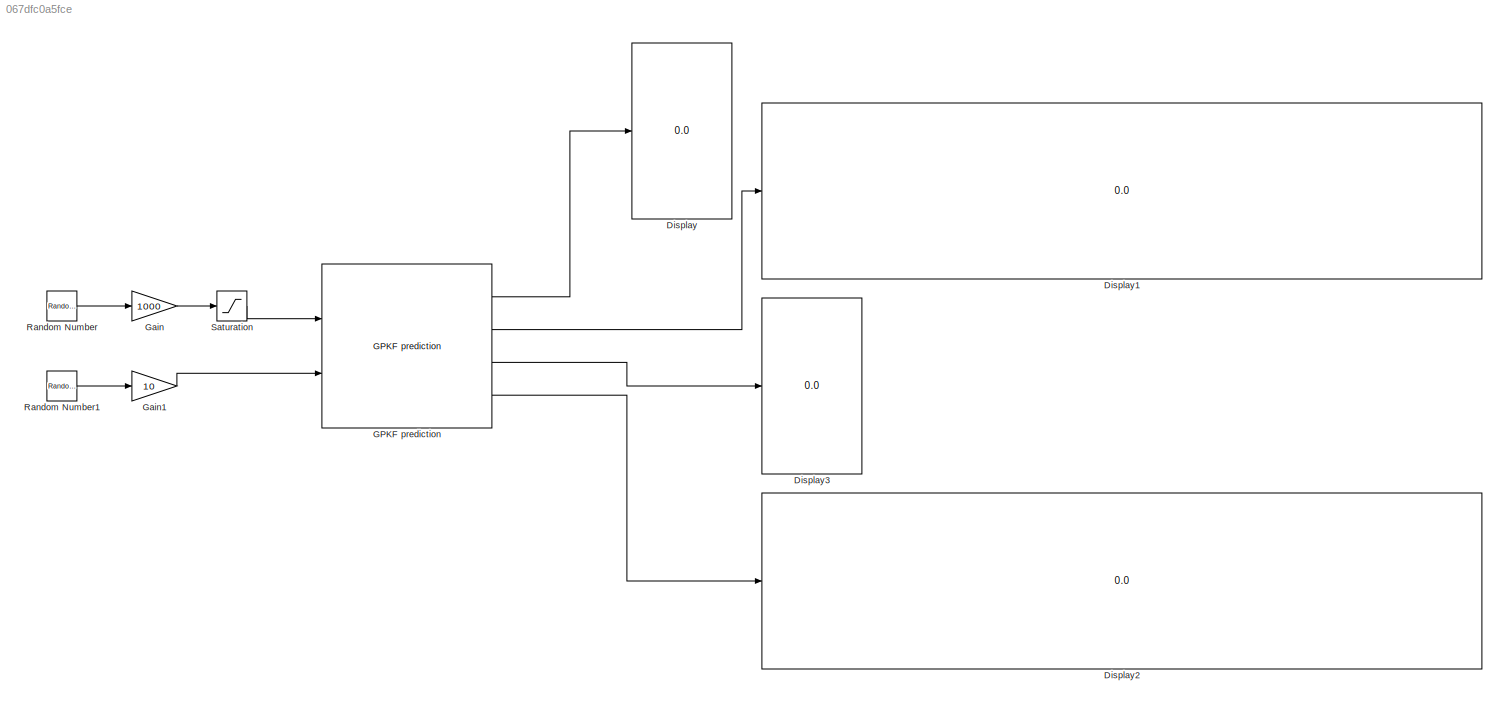
MODEL slx_067dfc0a5fce
KIND model
CONFIG AbsTol = auto
CONFIG EnableMultiTasking = off
CONFIG FixedStep = auto
CONFIG MaxStep = auto
CONFIG MinStep = auto
CONFIG RelTol = 1e-3
CONFIG SampleTimeConstraint = Unconstrained
CONFIG Solver = VariableStepAuto
CONFIG SolverName = VariableStepAuto
CONFIG StartTime = 0.0
CONFIG StopTime = 10.0
BLOCK [Display] Display
  Decimation = 1
  Ports = [1]
BLOCK [Display] Display1
  Decimation = 1
  Ports = [1]
BLOCK [Display] Display2
  Decimation = 1
  Ports = [1]
BLOCK [Display] Display3
  Decimation = 1
  Ports = [1]
BLOCK [Reference] GPKF prediction  REF=kfgpPrediction/GPKF prediction
  Ports = [2, 4]
  SourceBlock = kfgpPrediction/GPKF prediction
BLOCK [Gain] Gain
  Gain = 1000
BLOCK [Gain] Gain1
  Gain = 10
BLOCK [RandomNumber] Random Number
  SampleTime = 0.01
BLOCK [RandomNumber] Random Number1
  SampleTime = 0.01
BLOCK [Saturate] Saturation
  LowerLimit = 100
  UpperLimit = 1000
LINE GPKF prediction:1 -> Display:1
LINE GPKF prediction:2 -> Display1:1
LINE GPKF prediction:3 -> Display3:1
LINE GPKF prediction:4 -> Display2:1
LINE Gain1:1 -> GPKF prediction:2
LINE Gain:1 -> Saturation:1
LINE Random Number1:1 -> Gain1:1
LINE Random Number:1 -> Gain:1
LINE Saturation:1 -> GPKF prediction:1
